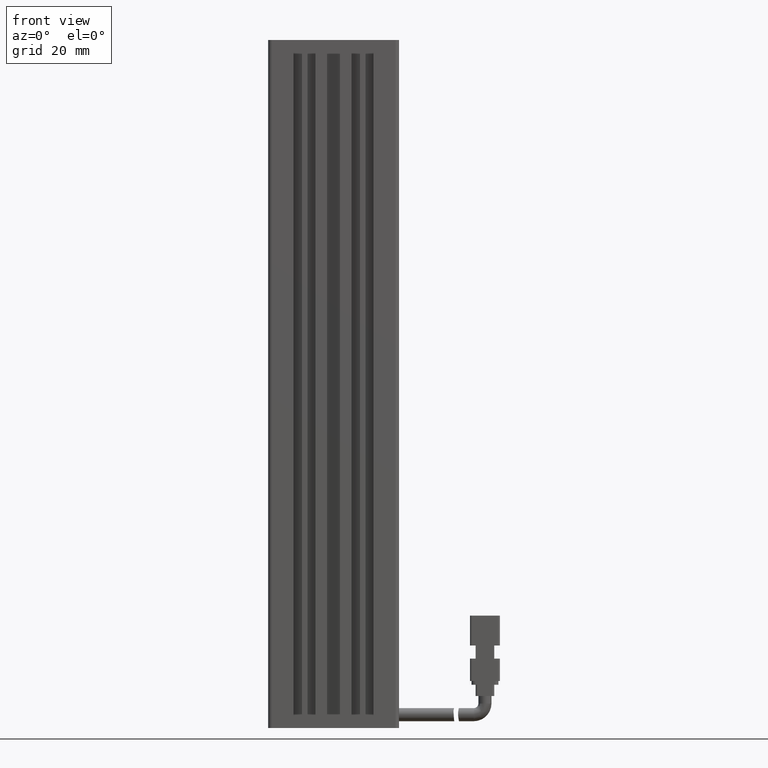
[diagram: clean part render]
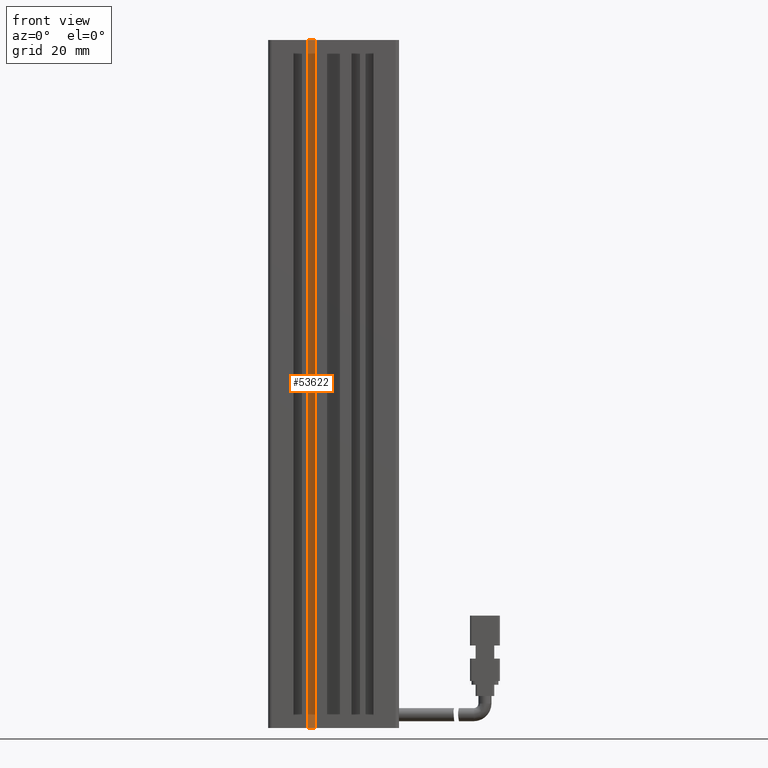
[diagram: same view with one face highlighted and labeled with its STEP entity id]
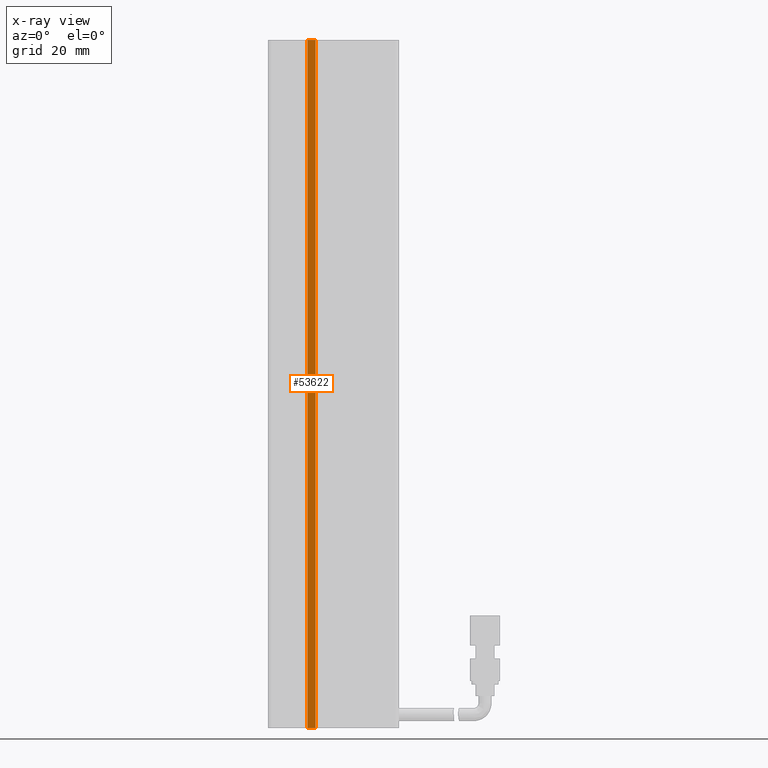
[diagram: x-ray of the same camera — body ghosted, the highlighted face saturated]
A machine part, front view. The second image highlights one B-rep face of the part: STEP entity #53622.
The next image is the same camera in x-ray: the body ghosted, the highlighted face saturated — about 0% of this face is hidden behind the body in this view.
In plain terms, the highlighted planar face has unit normal (-0, 1, 0).
Its self-contained STEP definition (entity closure, byte-faithful):
#151 = VECTOR ( 'NONE', #72546, 1000.000000000000000 ) ;
#400 = PLANE ( 'NONE',  #60752 ) ;
#1121 = CARTESIAN_POINT ( 'NONE',  ( 40.92537974683542500, 16.49073232304836600, -207.0000000000000300 ) ) ;
#2977 = EDGE_LOOP ( 'NONE', ( #18451, #77710, #9620, #9962 ) ) ;
#6143 = EDGE_CURVE ( 'NONE', #71009, #10159, #58183, .T. ) ;
#7382 = VECTOR ( 'NONE', #68397, 1000.000000000000000 ) ;
#9620 = ORIENTED_EDGE ( 'NONE', *, *, #37407, .F. ) ;
#9962 = ORIENTED_EDGE ( 'NONE', *, *, #37032, .T. ) ;
#10159 = VERTEX_POINT ( 'NONE', #12395 ) ;
#12395 = CARTESIAN_POINT ( 'NONE',  ( 36.12537974683543500, 16.49073232304837000, -23.00000000000000700 ) ) ;
#17098 = EDGE_CURVE ( 'NONE', #10159, #43681, #60229, .T. ) ;
#18451 = ORIENTED_EDGE ( 'NONE', *, *, #17098, .F. ) ;
#20145 = VERTEX_POINT ( 'NONE', #33708 ) ;
#30787 = DIRECTION ( 'NONE',  ( 0.0000000000000000000, 0.0000000000000000000, 1.000000000000000000 ) ) ;
#30926 = DIRECTION ( 'NONE',  ( -7.885106708985485100E-016, 1.000000000000000000, 0.0000000000000000000 ) ) ;
#32819 = FACE_OUTER_BOUND ( 'NONE', #2977, .T. ) ;
#33708 = CARTESIAN_POINT ( 'NONE',  ( 33.92537974683543200, 16.49073232304837000, -207.0000000000000300 ) ) ;
#36348 = CARTESIAN_POINT ( 'NONE',  ( 33.92537974683543200, 16.49073232304837000, -23.00000000000000700 ) ) ;
#37032 = EDGE_CURVE ( 'NONE', #20145, #43681, #39636, .T. ) ;
#37407 = EDGE_CURVE ( 'NONE', #20145, #71009, #59521, .T. ) ;
#39636 = LINE ( 'NONE', #1121, #7382 ) ;
#43310 = VECTOR ( 'NONE', #30787, 1000.000000000000000 ) ;
#43681 = VERTEX_POINT ( 'NONE', #75705 ) ;
#46872 = CARTESIAN_POINT ( 'NONE',  ( 40.92537974683542500, 16.49073232304836600, -23.00000000000000700 ) ) ;
#48982 = DIRECTION ( 'NONE',  ( -1.000000000000000000, -7.885106708985485100E-016, 0.0000000000000000000 ) ) ;
#49797 = CARTESIAN_POINT ( 'NONE',  ( 40.92537974683541800, 16.49073232304837300, -23.00000000000000700 ) ) ;
#53622 = ADVANCED_FACE ( 'NONE', ( #32819 ), #400, .F. ) ;
#58183 = LINE ( 'NONE', #46872, #62946 ) ;
#59128 = CARTESIAN_POINT ( 'NONE',  ( 33.92537974683543200, 16.49073232304837000, -23.00000000000000700 ) ) ;
#59521 = LINE ( 'NONE', #36348, #43310 ) ;
#60229 = LINE ( 'NONE', #60849, #151 ) ;
#60752 = AXIS2_PLACEMENT_3D ( 'NONE', #49797, #30926, #48982 ) ;
#60849 = CARTESIAN_POINT ( 'NONE',  ( 36.12537974683543500, 16.49073232304837000, -23.00000000000000700 ) ) ;
#62946 = VECTOR ( 'NONE', #65264, 1000.000000000000000 ) ;
#65264 = DIRECTION ( 'NONE',  ( 1.000000000000000000, 0.0000000000000000000, 0.0000000000000000000 ) ) ;
#68397 = DIRECTION ( 'NONE',  ( 1.000000000000000000, 0.0000000000000000000, 0.0000000000000000000 ) ) ;
#71009 = VERTEX_POINT ( 'NONE', #59128 ) ;
#72546 = DIRECTION ( 'NONE',  ( -0.0000000000000000000, -0.0000000000000000000, -1.000000000000000000 ) ) ;
#75705 = CARTESIAN_POINT ( 'NONE',  ( 36.12537974683543500, 16.49073232304837000, -207.0000000000000300 ) ) ;
#77710 = ORIENTED_EDGE ( 'NONE', *, *, #6143, .F. ) ;